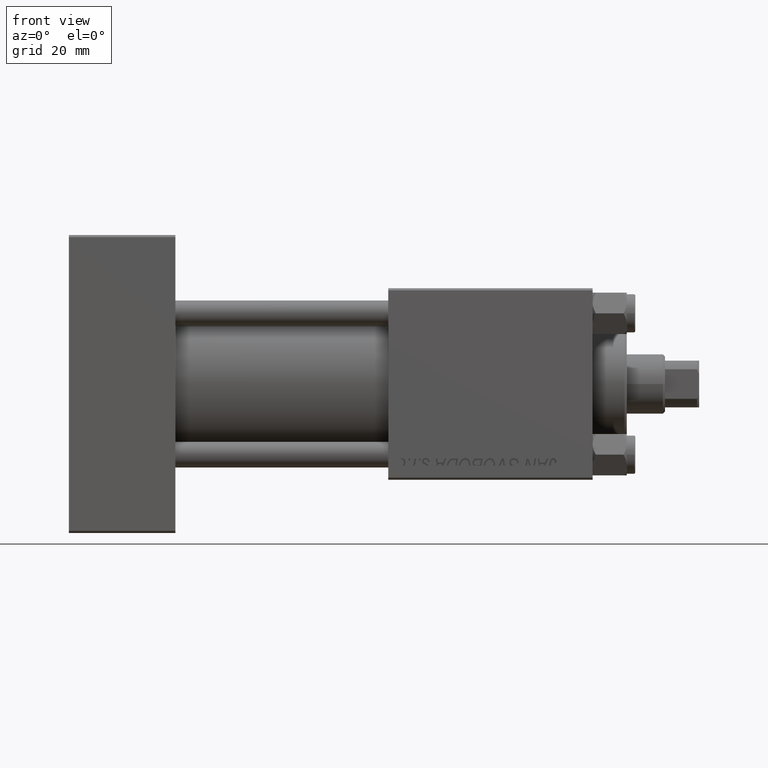
[diagram: clean part render]
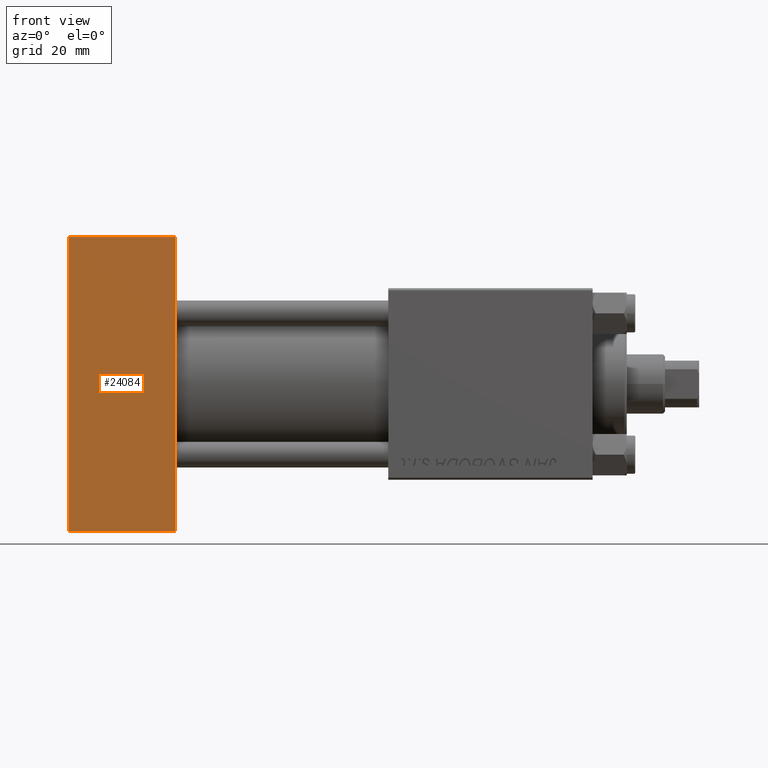
[diagram: same view with one face highlighted and labeled with its STEP entity id]
A machine part, front view. The second image highlights one B-rep face of the part: STEP entity #24084.
In plain terms, the highlighted planar face has unit normal (0, 1, 0).
Its self-contained STEP definition (entity closure, byte-faithful):
#2229 = DIRECTION ( 'NONE',  ( 0.000000000000000000, 0.000000000000000000, -1.000000000000000000 ) ) ;
#2692 = VECTOR ( 'NONE', #31395, 1000.000000000000000 ) ;
#2977 = EDGE_CURVE ( 'NONE', #51520, #25656, #39799, .T. ) ;
#7400 = FACE_OUTER_BOUND ( 'NONE', #41152, .T. ) ;
#8170 = PLANE ( 'NONE',  #25810 ) ;
#11153 = ORIENTED_EDGE ( 'NONE', *, *, #2977, .T. ) ;
#12624 = CARTESIAN_POINT ( 'NONE',  ( 0.000000000000000000, -22.49999999999999645, 35.00000000000000000 ) ) ;
#12812 = EDGE_CURVE ( 'NONE', #36173, #36747, #46689, .T. ) ;
#14169 = CARTESIAN_POINT ( 'NONE',  ( 25.00000000000000000, -22.49999999999999645, 34.50000000000000000 ) ) ;
#15297 = DIRECTION ( 'NONE',  ( -0.000000000000000000, 1.000000000000000000, 0.000000000000000000 ) ) ;
#15473 = VECTOR ( 'NONE', #34080, 1000.000000000000000 ) ;
#16577 = LINE ( 'NONE', #12624, #44461 ) ;
#23028 = CARTESIAN_POINT ( 'NONE',  ( 25.00000000000000000, -22.49999999999999645, -34.50000000000000000 ) ) ;
#23133 = EDGE_CURVE ( 'NONE', #51520, #36747, #45587, .T. ) ;
#23890 = ORIENTED_EDGE ( 'NONE', *, *, #12812, .T. ) ;
#24084 = ADVANCED_FACE ( 'NONE', ( #7400 ), #8170, .F. ) ;
#24168 = CARTESIAN_POINT ( 'NONE',  ( 25.00000000000000000, -22.49999999999999645, -34.50000000000000000 ) ) ;
#25656 = VERTEX_POINT ( 'NONE', #28018 ) ;
#25810 = AXIS2_PLACEMENT_3D ( 'NONE', #38938, #15297, #31317 ) ;
#28018 = CARTESIAN_POINT ( 'NONE',  ( 0.000000000000000000, -22.49999999999999645, 34.50000000000000000 ) ) ;
#29806 = CARTESIAN_POINT ( 'NONE',  ( 25.00000000000000000, -22.49999999999999645, 35.00000000000000000 ) ) ;
#29891 = DIRECTION ( 'NONE',  ( 0.000000000000000000, 0.000000000000000000, -1.000000000000000000 ) ) ;
#30881 = CARTESIAN_POINT ( 'NONE',  ( 25.00000000000000000, -22.49999999999999645, 34.50000000000000000 ) ) ;
#31317 = DIRECTION ( 'NONE',  ( 0.000000000000000000, -0.000000000000000000, 1.000000000000000000 ) ) ;
#31395 = DIRECTION ( 'NONE',  ( -1.000000000000000000, 0.000000000000000000, 0.000000000000000000 ) ) ;
#31633 = ORIENTED_EDGE ( 'NONE', *, *, #23133, .F. ) ;
#34080 = DIRECTION ( 'NONE',  ( 1.000000000000000000, 0.000000000000000000, 0.000000000000000000 ) ) ;
#36173 = VERTEX_POINT ( 'NONE', #36377 ) ;
#36377 = CARTESIAN_POINT ( 'NONE',  ( 0.000000000000000000, -22.49999999999999645, -34.50000000000000000 ) ) ;
#36747 = VERTEX_POINT ( 'NONE', #24168 ) ;
#38938 = CARTESIAN_POINT ( 'NONE',  ( 25.00000000000000000, -22.49999999999999645, 35.00000000000000000 ) ) ;
#39799 = LINE ( 'NONE', #30881, #2692 ) ;
#40882 = VECTOR ( 'NONE', #2229, 1000.000000000000000 ) ;
#41152 = EDGE_LOOP ( 'NONE', ( #42006, #23890, #31633, #11153 ) ) ;
#42006 = ORIENTED_EDGE ( 'NONE', *, *, #46429, .T. ) ;
#44461 = VECTOR ( 'NONE', #29891, 1000.000000000000000 ) ;
#45587 = LINE ( 'NONE', #29806, #40882 ) ;
#46429 = EDGE_CURVE ( 'NONE', #25656, #36173, #16577, .T. ) ;
#46689 = LINE ( 'NONE', #23028, #15473 ) ;
#51520 = VERTEX_POINT ( 'NONE', #14169 ) ;